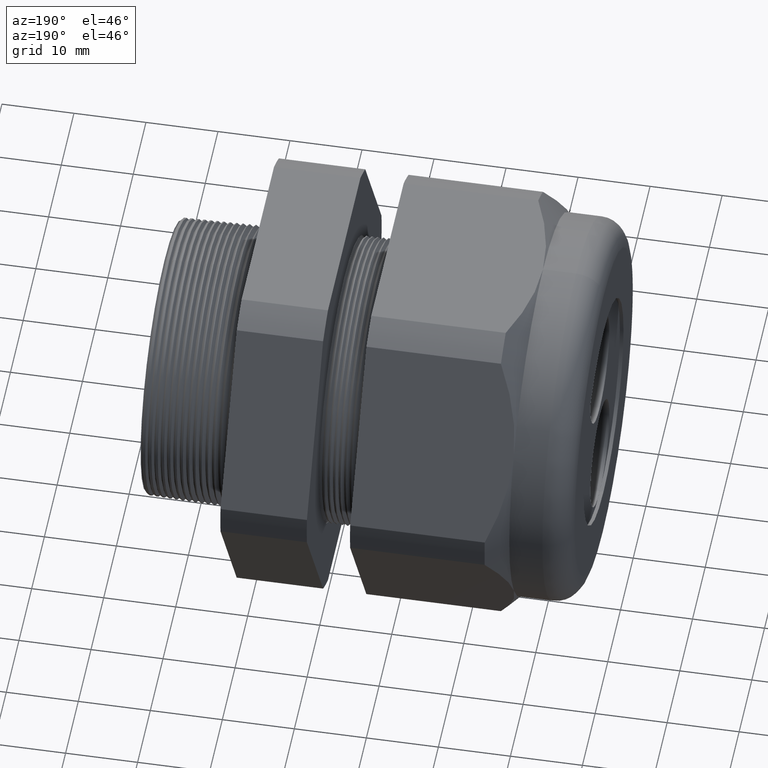
[diagram: clean part render]
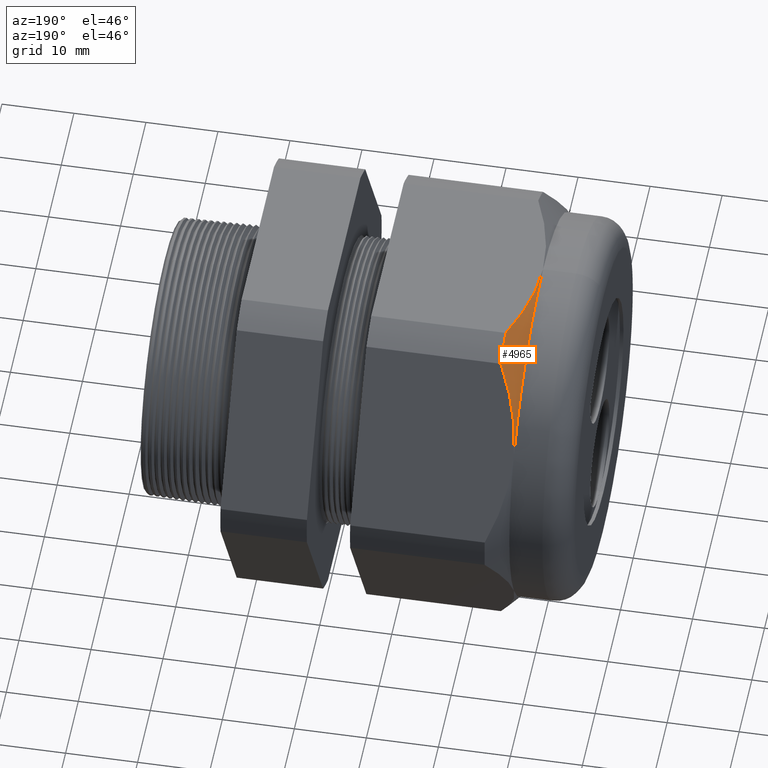
[diagram: same view with one face highlighted and labeled with its STEP entity id]
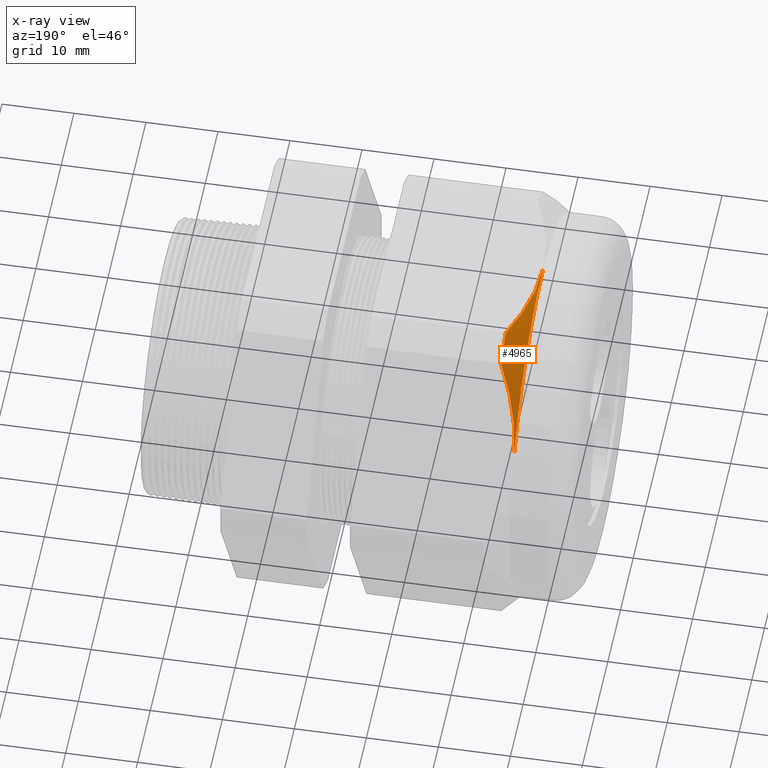
[diagram: x-ray of the same camera — body ghosted, the highlighted face saturated]
A machine part, auxiliary view. The second image highlights one B-rep face of the part: STEP entity #4965.
The next image is the same camera in x-ray: the body ghosted, the highlighted face saturated — about 0% of this face is hidden behind the body in this view.
In plain terms, the highlighted conical surface has half-angle 45 deg.
Its self-contained STEP definition (entity closure, byte-faithful):
#23 = EDGE_CURVE ( 'NONE', #4462, #5240, #360, .T. ) ;
#351 = CARTESIAN_POINT ( 'NONE',  ( -1.754342000000000300, 0.6532729870224187600, 0.9584979952648866600 ) ) ;
#352 = CARTESIAN_POINT ( 'NONE',  ( -1.771743928187930100, 0.6733201437198451700, 0.9237753013176488400 ) ) ;
#353 = CARTESIAN_POINT ( 'NONE',  ( -1.787722809093209100, 0.6936676680849165300, 0.8885323553090992400 ) ) ;
#354 = CARTESIAN_POINT ( 'NONE',  ( -1.816049984818948400, 0.7349840752165900400, 0.8169702389708400900 ) ) ;
#355 = CARTESIAN_POINT ( 'NONE',  ( -1.828286401335962800, 0.7557945758470282500, 0.7809253945479768300 ) ) ;
#356 = CARTESIAN_POINT ( 'NONE',  ( -1.858295772310753800, 0.8187555438091955700, 0.6718737991437868700 ) ) ;
#357 = CARTESIAN_POINT ( 'NONE',  ( -1.869292000000000800, 0.8614415502338413900, 0.5979394672440890800 ) ) ;
#358 = CARTESIAN_POINT ( 'NONE',  ( -1.869292000000000000, 0.9049965469547380800, 0.5224999999999996300 ) ) ;
#360 = B_SPLINE_CURVE_WITH_KNOTS ( 'NONE', 3,
 ( #358, #357, #356, #355, #354, #353, #352, #351 ),
 .UNSPECIFIED., .F., .F.,
 ( 4, 2, 2, 4 ),
 ( 0.01312468964301423600, 0.01968241065928898900, 0.02296127116742636300, 0.02624013167556373300 ),
 .UNSPECIFIED. ) ;
#2151 = DIRECTION ( 'NONE',  ( 0.0000000000000000000, 0.0000000000000000000, -1.000000000000000000 ) ) ;
#2152 = DIRECTION ( 'NONE',  ( 1.000000000000000000, 0.0000000000000000000, 0.0000000000000000000 ) ) ;
#2153 = CARTESIAN_POINT ( 'NONE',  ( -1.869292000000000000, 0.0000000000000000000, 0.0000000000000000000 ) ) ;
#2154 = AXIS2_PLACEMENT_3D ( 'NONE', #2153, #2152, #2151 ) ;
#2159 = CIRCLE ( 'NONE', #2154, 1.044999999999999700 ) ;
#2162 = CARTESIAN_POINT ( 'NONE',  ( -1.869292000000000000, 0.0000000000000000000, 1.044999999999999900 ) ) ;
#2172 = CARTESIAN_POINT ( 'NONE',  ( -1.869292000000000000, 0.9049965469547380800, 0.5224999999999996300 ) ) ;
#3096 = DIRECTION ( 'NONE',  ( 0.0000000000000000000, 0.0000000000000000000, 1.000000000000000000 ) ) ;
#3097 = DIRECTION ( 'NONE',  ( 1.000000000000000000, 0.0000000000000000000, 0.0000000000000000000 ) ) ;
#3098 = CARTESIAN_POINT ( 'NONE',  ( -1.869292000000000000, 0.0000000000000000000, 0.0000000000000000000 ) ) ;
#3099 = AXIS2_PLACEMENT_3D ( 'NONE', #3098, #3097, #3096 ) ;
#3101 = CONICAL_SURFACE ( 'NONE', #3099, 1.045000000000000200, 0.7853981633974501700 ) ;
#3102 = FACE_OUTER_BOUND ( 'NONE', #4966, .T. ) ;
#3429 = CARTESIAN_POINT ( 'NONE',  ( -1.754342000000000300, 0.5034471198646388600, 1.044999999999999900 ) ) ;
#3464 = CARTESIAN_POINT ( 'NONE',  ( -1.762942910033211200, 0.4836304892804658100, 1.044999999999999700 ) ) ;
#3465 = CARTESIAN_POINT ( 'NONE',  ( -1.754342000000000300, 0.5034471198646388600, 1.044999999999999900 ) ) ;
#3469 = B_SPLINE_CURVE_WITH_KNOTS ( 'NONE', 3,
 ( #3465, #3464, #3530, #3529, #3528, #3527, #3526, #3525, #3524, #3523, #3522, #3521, #3520, #3519 ),
 .UNSPECIFIED., .F., .F.,
 ( 4, 2, 2, 2, 2, 2, 4 ),
 ( 0.02039820435195582200, 0.02203190909537092200, 0.02366561383878601800, 0.02693302332561621100, 0.03020043281244640500, 0.03183413755586150100, 0.03346784229927659400 ),
 .UNSPECIFIED. ) ;
#3519 = CARTESIAN_POINT ( 'NONE',  ( -1.869292000000000000, 0.0000000000000000000, 1.044999999999999900 ) ) ;
#3520 = CARTESIAN_POINT ( 'NONE',  ( -1.869292000000000400, 0.02182873446798830700, 1.044999999999999700 ) ) ;
#3521 = CARTESIAN_POINT ( 'NONE',  ( -1.868601348862169300, 0.04373691554683262900, 1.045000000000000200 ) ) ;
#3522 = CARTESIAN_POINT ( 'NONE',  ( -1.865889267300422800, 0.08713363206265284400, 1.044999999999999900 ) ) ;
#3523 = CARTESIAN_POINT ( 'NONE',  ( -1.863869075271275900, 0.1087024430698536000, 1.044999999999999900 ) ) ;
#3524 = CARTESIAN_POINT ( 'NONE',  ( -1.855917652805893800, 0.1730400535522952600, 1.045000000000000200 ) ) ;
#3525 = CARTESIAN_POINT ( 'NONE',  ( -1.848093749831173100, 0.2154396742832504500, 1.044999999999999900 ) ) ;
#3526 = CARTESIAN_POINT ( 'NONE',  ( -1.828018536546963200, 0.2993753196147929100, 1.044999999999999700 ) ) ;
#3527 = CARTESIAN_POINT ( 'NONE',  ( -1.815769846189894800, 0.3409118552550474100, 1.044999999999999700 ) ) ;
#3528 = CARTESIAN_POINT ( 'NONE',  ( -1.794564483841140500, 0.4026641939678179400, 1.045000000000000200 ) ) ;
#3529 = CARTESIAN_POINT ( 'NONE',  ( -1.787018621072151000, 0.4231631440832458500, 1.045000000000000200 ) ) ;
#3530 = CARTESIAN_POINT ( 'NONE',  ( -1.771216119577155400, 0.4636207977166989000, 1.044999999999999900 ) ) ;
#3612 = DIRECTION ( 'NONE',  ( 0.0000000000000000000, 0.0000000000000000000, -1.000000000000000000 ) ) ;
#3613 = DIRECTION ( 'NONE',  ( 1.000000000000000000, 0.0000000000000000000, 0.0000000000000000000 ) ) ;
#3614 = CARTESIAN_POINT ( 'NONE',  ( -1.754342000000000300, 0.0000000000000000000, 0.0000000000000000000 ) ) ;
#3615 = AXIS2_PLACEMENT_3D ( 'NONE', #3614, #3613, #3612 ) ;
#3616 = CIRCLE ( 'NONE', #3615, 1.159950000000000000 ) ;
#3617 = CARTESIAN_POINT ( 'NONE',  ( -1.754342000000000300, 0.6532729870224187600, 0.9584979952648866600 ) ) ;
#4462 = VERTEX_POINT ( 'NONE', #2172 ) ;
#4465 = VERTEX_POINT ( 'NONE', #2162 ) ;
#4469 = EDGE_CURVE ( 'NONE', #4462, #4465, #2159, .T. ) ;
#4952 = ORIENTED_EDGE ( 'NONE', *, *, #5239, .F. ) ;
#4965 = ADVANCED_FACE ( 'NONE', ( #3102 ), #3101, .T. ) ;
#4966 = EDGE_LOOP ( 'NONE', ( #4952, #5065, #5051, #5040 ) ) ;
#5040 = ORIENTED_EDGE ( 'NONE', *, *, #5192, .F. ) ;
#5051 = ORIENTED_EDGE ( 'NONE', *, *, #4469, .T. ) ;
#5065 = ORIENTED_EDGE ( 'NONE', *, *, #23, .F. ) ;
#5150 = VERTEX_POINT ( 'NONE', #3429 ) ;
#5192 = EDGE_CURVE ( 'NONE', #5150, #4465, #3469, .T. ) ;
#5239 = EDGE_CURVE ( 'NONE', #5240, #5150, #3616, .T. ) ;
#5240 = VERTEX_POINT ( 'NONE', #3617 ) ;